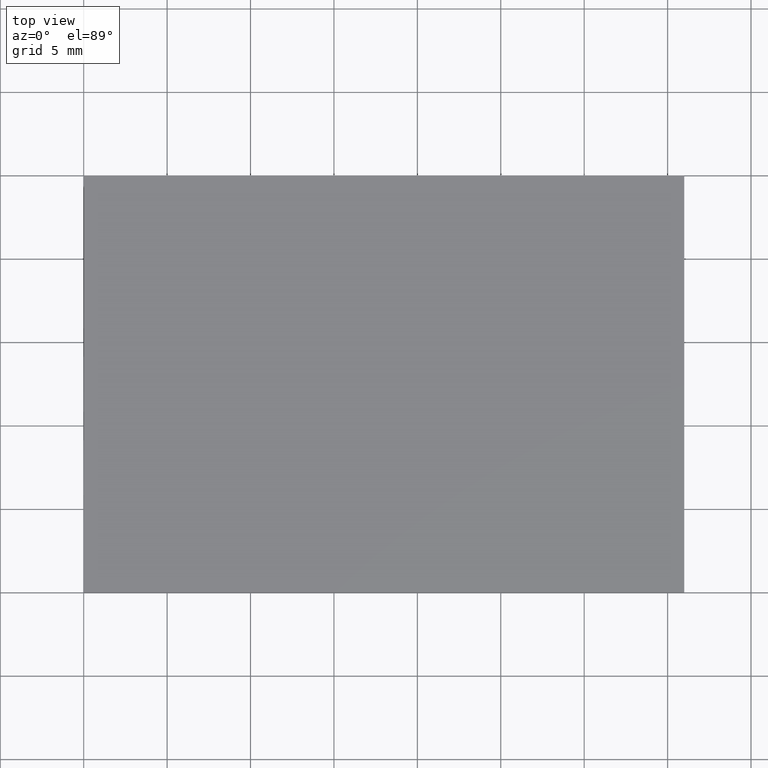
[diagram: clean part render]
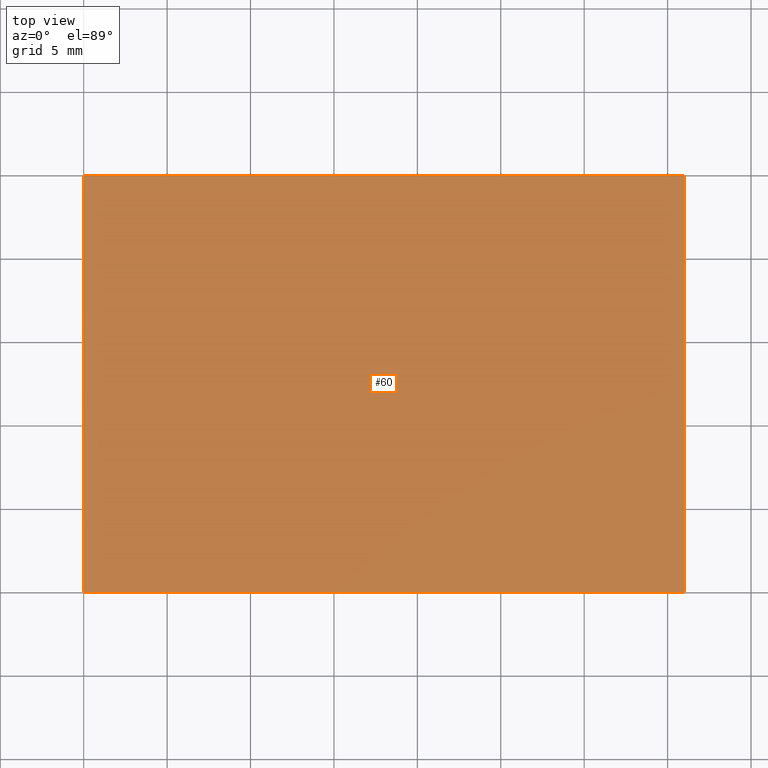
[diagram: same view with one face highlighted and labeled with its STEP entity id]
A machine part, top view. The second image highlights one B-rep face of the part: STEP entity #60.
In plain terms, the highlighted planar face has unit normal (0, 0, -1).
Its self-contained STEP definition (entity closure, byte-faithful):
#29 = LINE ( 'NONE', #94, #96 ) ;
#39 = CARTESIAN_POINT ( 'NONE',  ( 0.000000000000000000, 0.000000000000000000, 1.100000000000000089 ) ) ;
#42 = VECTOR ( 'NONE', #178, 1000.000000000000000 ) ;
#49 = EDGE_LOOP ( 'NONE', ( #127, #98, #171, #174 ) ) ;
#58 = LINE ( 'NONE', #121, #64 ) ;
#59 = AXIS2_PLACEMENT_3D ( 'NONE', #139, #109, #75 ) ;
#60 = ADVANCED_FACE ( 'NONE', ( #201 ), #108, .F. ) ;
#64 = VECTOR ( 'NONE', #106, 1000.000000000000000 ) ;
#71 = EDGE_CURVE ( 'NONE', #116, #115, #58, .T. ) ;
#75 = DIRECTION ( 'NONE',  ( -1.000000000000000000, 0.000000000000000000, -0.000000000000000000 ) ) ;
#85 = VERTEX_POINT ( 'NONE', #143 ) ;
#88 = DIRECTION ( 'NONE',  ( 0.000000000000000000, 1.000000000000000000, 0.000000000000000000 ) ) ;
#90 = CARTESIAN_POINT ( 'NONE',  ( 0.000000000000000000, 25.00000000000000000, 1.100000000000000089 ) ) ;
#94 = CARTESIAN_POINT ( 'NONE',  ( 0.000000000000000000, 0.000000000000000000, 1.100000000000000089 ) ) ;
#95 = EDGE_CURVE ( 'NONE', #115, #113, #29, .T. ) ;
#96 = VECTOR ( 'NONE', #154, 1000.000000000000000 ) ;
#98 = ORIENTED_EDGE ( 'NONE', *, *, #95, .T. ) ;
#106 = DIRECTION ( 'NONE',  ( -0.000000000000000000, -1.000000000000000000, -0.000000000000000000 ) ) ;
#107 = CARTESIAN_POINT ( 'NONE',  ( 36.00000000000000000, 0.000000000000000000, 1.100000000000000089 ) ) ;
#108 = PLANE ( 'NONE',  #59 ) ;
#109 = DIRECTION ( 'NONE',  ( 0.000000000000000000, 0.000000000000000000, -1.000000000000000000 ) ) ;
#110 = LINE ( 'NONE', #119, #42 ) ;
#113 = VERTEX_POINT ( 'NONE', #186 ) ;
#114 = EDGE_CURVE ( 'NONE', #85, #116, #110, .T. ) ;
#115 = VERTEX_POINT ( 'NONE', #39 ) ;
#116 = VERTEX_POINT ( 'NONE', #90 ) ;
#119 = CARTESIAN_POINT ( 'NONE',  ( 0.000000000000000000, 25.00000000000000000, 1.100000000000000089 ) ) ;
#121 = CARTESIAN_POINT ( 'NONE',  ( 0.000000000000000000, 0.000000000000000000, 1.100000000000000089 ) ) ;
#127 = ORIENTED_EDGE ( 'NONE', *, *, #71, .T. ) ;
#134 = EDGE_CURVE ( 'NONE', #113, #85, #136, .T. ) ;
#136 = LINE ( 'NONE', #107, #152 ) ;
#139 = CARTESIAN_POINT ( 'NONE',  ( 0.000000000000000000, 0.000000000000000000, 1.100000000000000089 ) ) ;
#143 = CARTESIAN_POINT ( 'NONE',  ( 36.00000000000000000, 25.00000000000000000, 1.100000000000000089 ) ) ;
#152 = VECTOR ( 'NONE', #88, 1000.000000000000000 ) ;
#154 = DIRECTION ( 'NONE',  ( 1.000000000000000000, 0.000000000000000000, 0.000000000000000000 ) ) ;
#171 = ORIENTED_EDGE ( 'NONE', *, *, #134, .T. ) ;
#174 = ORIENTED_EDGE ( 'NONE', *, *, #114, .T. ) ;
#178 = DIRECTION ( 'NONE',  ( -1.000000000000000000, -0.000000000000000000, -0.000000000000000000 ) ) ;
#186 = CARTESIAN_POINT ( 'NONE',  ( 36.00000000000000000, 0.000000000000000000, 1.100000000000000089 ) ) ;
#201 = FACE_OUTER_BOUND ( 'NONE', #49, .T. ) ;